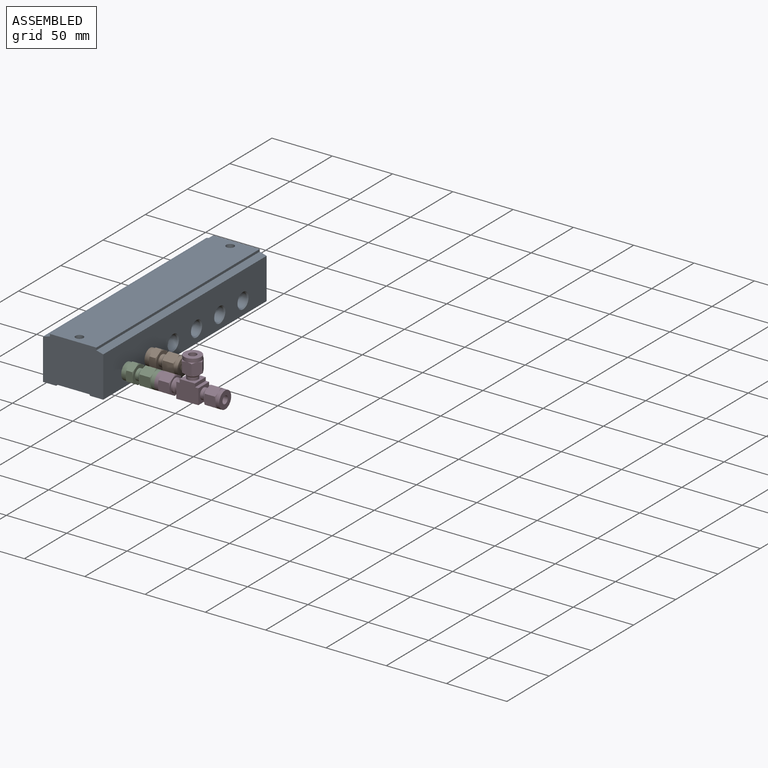
[diagram: assembled view]
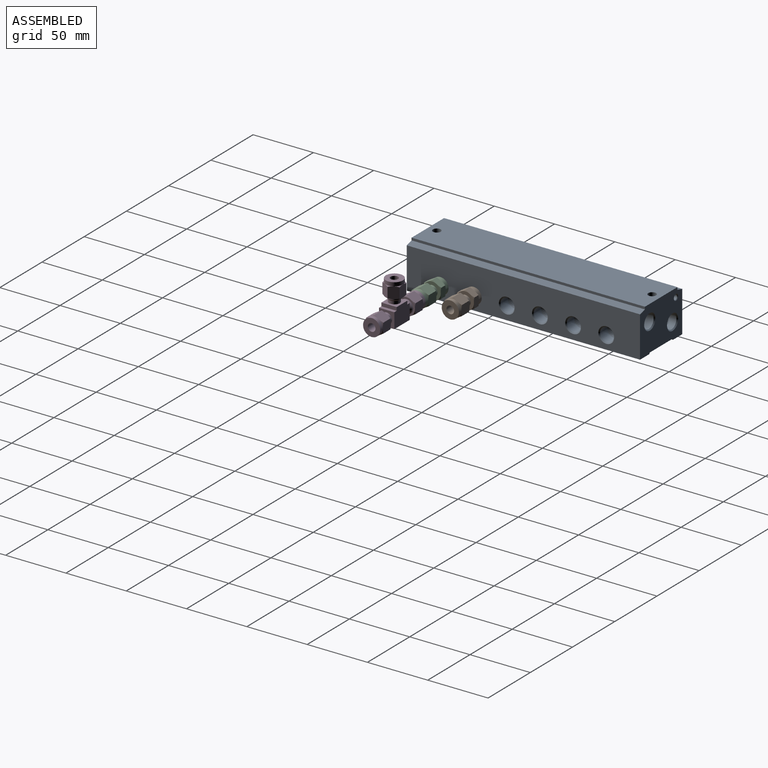
[diagram: assembled view, second angle]
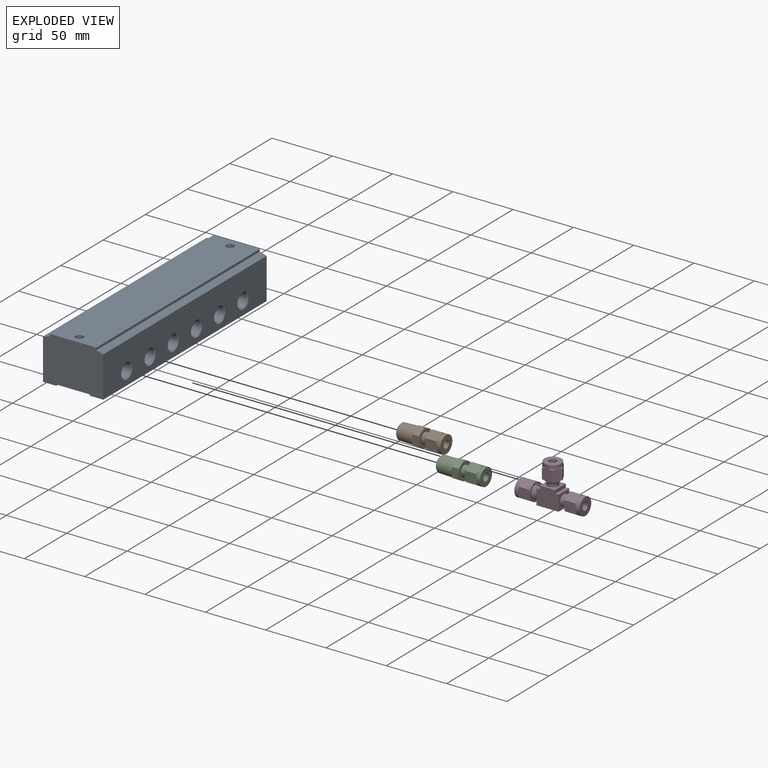
[diagram: exploded view]
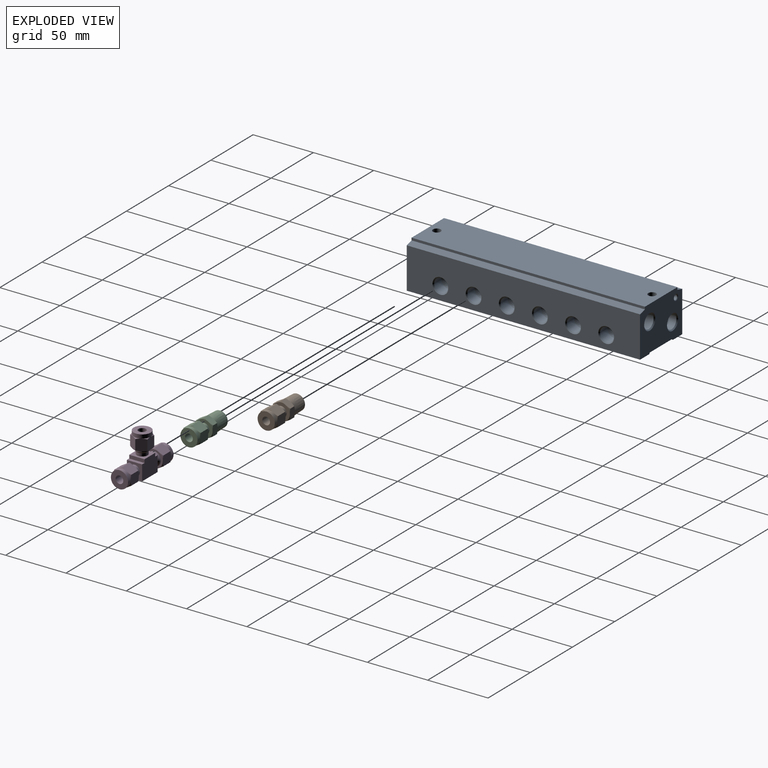
[diagram: exploded view, second angle]
ASSEMBLY  parts=4 mates=3
PART A: 43 faces, bbox 50x37.5x193.5 mm
  f0: plane 193.5x5.75mm, normal (-0.26,0.97,0), area 1151.9mm2, adj f1,f2,f3,f42
  f1: plane 50x37.5mm, normal (0,0,1), area 1815.6mm2, adj f0,f2,f3,f4,f5,f6,f7,f8
  f2: plane 193.5x2mm, normal (-1,0,0), area 387mm2, adj f0,f1,f12,f42
  f3: plane 193.5x33.96mm, normal (-1,0,0), area 6571.1mm2, adj f0,f1,f4,f42
  f4: plane 193.5x10.92mm, normal (0,-1,0), area 2113.5mm2, adj f1,f3,f5,f42
  f5: plane 193.5x1mm, normal (0.87,-0.5,0), area 223.4mm2, adj f1,f4,f6,f42
  f6: plane 193.5x27mm, normal (0,-1,0), area 5158.1mm2, adj f1,f5,f7,f13,f14,f42
  f7: plane 193.5x1mm, normal (-0.87,-0.5,0), area 223.4mm2, adj f1,f6,f8,f42
  f8: plane 193.5x10.92mm, normal (0,-1,0), area 2113.5mm2, adj f1,f7,f9,f42
  f9: plane 193.5x33.96mm, normal (1,0,0), area 5755.4mm2, adj f1,f8,f10,f24,f27,f30,f33,f36
  f10: plane 193.5x5.75mm, normal (0.26,0.97,0), area 1151.9mm2, adj f1,f9,f11,f42
  f11: plane 193.5x2mm, normal (1,0,0), area 387mm2, adj f1,f10,f12,f42
  f12: plane 193.5x38.5mm, normal (0,1,0), area 7383.4mm2, adj f1,f2,f11,f13,f14,f42
  f13: cylinder r=3.25mm len=36.5mm, axis (0,1,0), area 745.3mm2, adj f6,f12
  f14: cylinder r=3.25mm len=36.5mm, axis (0,1,0), area 745.3mm2, adj f6,f12
  f15: cone r=2.07mm half-angle=45deg, axis (0,0,-1), area 8.8mm2, adj f16,f42
  f16: cylinder r=2.07mm len=4.57mm, axis (0,0,1), area 59.3mm2, adj f15,f17
  f17: cone r=866.03mm half-angle=60deg, axis (0,0,-1), area 15.5mm2, adj f16
  f18: cone r=5.72mm half-angle=45deg, axis (0,0,-1), area 46.8mm2, adj f19,f42
  f19: cylinder r=5.72mm len=11.45mm, axis (0,0,1), area 307.2mm2, adj f18,f20
  f20: cone r=866.03mm half-angle=60deg, axis (0,0,-1), area 118.8mm2, adj f19
  f21: cone r=5.72mm half-angle=45deg, axis (0,0,-1), area 46.8mm2, adj f22,f42
  f22: cylinder r=5.72mm len=11.45mm, axis (0,0,1), area 307.2mm2, adj f21,f23
  f23: cone r=866.03mm half-angle=60deg, axis (0,0,-1), area 118.8mm2, adj f22
  f24: cone r=5.72mm half-angle=45deg, axis (1,0,0), area 46.8mm2, adj f9,f25
  f25: cylinder r=5.72mm len=11.45mm, axis (-1,0,0), area 307.2mm2, adj f24,f26
  f26: cone r=866.03mm half-angle=60deg, axis (1,0,0), area 118.8mm2, adj f25
  f27: cone r=5.72mm half-angle=45deg, axis (1,0,0), area 46.8mm2, adj f9,f28
  f28: cylinder r=5.72mm len=11.45mm, axis (-1,0,0), area 307.2mm2, adj f27,f29
  f29: cone r=866.03mm half-angle=60deg, axis (1,0,0), area 118.8mm2, adj f28
  f30: cone r=5.72mm half-angle=45deg, axis (1,0,0), area 46.8mm2, adj f9,f31
  f31: cylinder r=5.72mm len=11.45mm, axis (-1,0,0), area 307.2mm2, adj f30,f32
  f32: cone r=866.03mm half-angle=60deg, axis (1,0,0), area 118.8mm2, adj f31
  f33: cone r=5.72mm half-angle=45deg, axis (1,0,0), area 46.8mm2, adj f9,f34
  f34: cylinder r=5.72mm len=11.45mm, axis (-1,0,0), area 307.2mm2, adj f33,f35
  f35: cone r=866.03mm half-angle=60deg, axis (1,0,0), area 118.8mm2, adj f34
  f36: cone r=5.72mm half-angle=45deg, axis (1,0,0), area 46.8mm2, adj f9,f37
  f37: cylinder r=5.72mm len=11.45mm, axis (-1,0,0), area 307.2mm2, adj f36,f38
  f38: cone r=866.03mm half-angle=60deg, axis (1,0,0), area 118.8mm2, adj f37
  f39: cone r=5.72mm half-angle=45deg, axis (1,0,0), area 46.8mm2, adj f9,f40
  f40: cylinder r=5.72mm len=11.45mm, axis (-1,0,0), area 307.2mm2, adj f39,f41
  f41: cone r=866.03mm half-angle=60deg, axis (1,0,0), area 118.8mm2, adj f40
  f42: plane 50x37.5mm, normal (0,0,-1), area 1524mm2, adj f0,f2,f3,f4,f5,f6,f7,f8
PART B: 51 faces, bbox 37.8x16.5x16.5 mm
  f0: cylinder r=2.41mm len=22.61mm, axis (1,0,0), area 342.7mm2, adj f1,f2
  f1: plane 6.35x6.35mm, normal (1,0,0), area 13.4mm2, adj f0,f3
  f2: plane 10.75x10.75mm, normal (-1,0,0), area 72.5mm2, adj f0,f4
  f3: cylinder r=3.17mm len=15.24mm, axis (-1,0,0), area 304mm2, adj f1,f5
  f4: cone r=6.04mm half-angle=45deg, axis (1,0,0), area 54.8mm2, adj f2,f6
  f5: plane 14.22x14.22mm, normal (1,0,0), area 127.2mm2, adj f3,f7
  f6: cone r=6.55mm half-angle=1.8deg, axis (1,0,0), area 378mm2, adj f4,f8
  f7: cylinder r=7.11mm len=14.22mm, axis (-1,0,0), area 136.2mm2, adj f5,f9,f10,f11,f12,f13,f14
  f8: cylinder r=6.71mm len=13.41mm, axis (1,0,0), area 169.3mm2, adj f6,f15
  f9: cone r=7.66mm half-angle=65deg, axis (-1,0,0), area 3mm2, adj f7,f16,f17
  f10: cone r=7.66mm half-angle=65deg, axis (-1,0,0), area 3mm2, adj f7,f17,f18
  f11: cone r=7.66mm half-angle=65deg, axis (-1,0,0), area 3mm2, adj f7,f18,f19
  f12: cone r=7.66mm half-angle=65deg, axis (-1,0,0), area 3mm2, adj f7,f19,f20
  f13: cone r=7.66mm half-angle=65deg, axis (-1,0,0), area 3mm2, adj f7,f20,f21
  f14: cone r=7.66mm half-angle=65deg, axis (-1,0,0), area 3mm2, adj f7,f16,f21
  f15: plane 14.29x14.29mm, normal (-1,0,0), area 19.1mm2, adj f8,f22,f23,f24,f25,f26,f27
  f16: plane 9.65x8.21mm, normal (0,-1,0), area 76.4mm2, adj f9,f14,f17,f21,f28,f29
  f17: plane 9.65x7.11mm, normal (0,-0.5,-0.87), area 76.4mm2, adj f9,f10,f16,f18,f29,f30
  f18: plane 9.65x7.11mm, normal (0,0.5,-0.87), area 76.4mm2, adj f10,f11,f17,f19,f30,f31
  f19: plane 9.65x8.21mm, normal (0,1,0), area 76.4mm2, adj f11,f12,f18,f20,f31,f32
  f20: plane 9.65x7.11mm, normal (0,0.5,0.87), area 76.4mm2, adj f12,f13,f19,f21,f32,f33
  f21: plane 9.65x7.11mm, normal (0,-0.5,0.87), area 76.4mm2, adj f13,f14,f16,f20,f28,f33
  f22: cone r=7.7mm half-angle=65deg, axis (1,0,0), area 3mm2, adj f15,f34,f35
  f23: cone r=7.7mm half-angle=65deg, axis (1,0,0), area 3mm2, adj f15,f35,f36
  f24: cone r=7.7mm half-angle=65deg, axis (1,0,0), area 3mm2, adj f15,f36,f37
  f25: cone r=7.7mm half-angle=65deg, axis (1,0,0), area 3mm2, adj f15,f37,f39
  f26: cone r=7.7mm half-angle=65deg, axis (1,0,0), area 3mm2, adj f15,f34,f38
  f27: cone r=7.7mm half-angle=65deg, axis (1,0,0), area 3mm2, adj f15,f38,f39
  f28: cone r=7.66mm half-angle=65deg, axis (1,0,0), area 3mm2, adj f16,f21,f40
  f29: cone r=7.66mm half-angle=65deg, axis (1,0,0), area 3mm2, adj f16,f17,f40
  f30: cone r=7.66mm half-angle=65deg, axis (1,0,0), area 3mm2, adj f17,f18,f40
  f31: cone r=7.66mm half-angle=65deg, axis (1,0,0), area 3mm2, adj f18,f19,f40
  f32: cone r=7.66mm half-angle=65deg, axis (1,0,0), area 3mm2, adj f19,f20,f40
  f33: cone r=7.66mm half-angle=65deg, axis (1,0,0), area 3mm2, adj f20,f21,f40
  f34: plane 7.14x5.84mm, normal (0,-0.5,0.87), area 45.3mm2, adj f22,f26,f35,f38,f42,f43
  f35: plane 7.14x5.84mm, normal (0,0.5,0.87), area 45.3mm2, adj f22,f23,f34,f36,f43,f44
  f36: plane 8.25x5.84mm, normal (0,1,0), area 45.3mm2, adj f23,f24,f35,f37,f44,f45
  f37: plane 7.14x5.84mm, normal (0,0.5,-0.87), area 45.3mm2, adj f24,f25,f36,f39,f45,f46
  f38: plane 8.25x5.84mm, normal (0,-1,0), area 45.3mm2, adj f26,f27,f34,f39,f42,f47
  f39: plane 7.14x5.84mm, normal (0,-0.5,-0.87), area 45.3mm2, adj f25,f27,f37,f38,f46,f47
  f40: plane 14.22x14.22mm, normal (-1,0,0), area 61.9mm2, adj f28,f29,f30,f31,f32,f33,f41
  f41: cylinder r=5.56mm len=11.11mm, axis (-1,0,0), area 51mm2, adj f40,f48
  f42: cone r=7.7mm half-angle=65deg, axis (-1,0,0), area 3mm2, adj f34,f38,f49
  f43: cone r=7.7mm half-angle=65deg, axis (-1,0,0), area 3mm2, adj f34,f35,f49
  f44: cone r=7.7mm half-angle=65deg, axis (-1,0,0), area 3mm2, adj f35,f36,f49
  f45: cone r=7.7mm half-angle=65deg, axis (-1,0,0), area 3mm2, adj f36,f37,f49
  f46: cone r=7.7mm half-angle=65deg, axis (-1,0,0), area 3mm2, adj f37,f39,f49
  f47: cone r=7.7mm half-angle=65deg, axis (-1,0,0), area 3mm2, adj f38,f39,f49
  f48: cone r=5.02mm half-angle=45deg, axis (1,0,0), area 48.1mm2, adj f41,f50
  f49: plane 14.29x14.29mm, normal (1,0,0), area 97.4mm2, adj f42,f43,f44,f45,f46,f47,f50
  f50: cylinder r=4.48mm len=8.95mm, axis (-1,0,0), area 71.4mm2, adj f48,f49
PART C: same geometry as B
PART D: 90 faces, bbox 53.8x16.4x35.1 mm
  f0: cylinder r=3.17mm len=15.24mm, axis (-1,0,0), area 304mm2, adj f2,f4
  f1: cylinder r=3.17mm len=15.24mm, axis (1,0,0), area 304mm2, adj f3,f5
  f2: plane 6.35x6.35mm, normal (1,0,0), area 13.4mm2, adj f0,f6
  f3: plane 6.35x6.35mm, normal (-1,0,0), area 13.4mm2, adj f1,f6
  f4: plane 14.22x14.22mm, normal (1,0,0), area 127.2mm2, adj f0,f7
  f5: plane 14.22x14.22mm, normal (-1,0,0), area 127.2mm2, adj f1,f8
  f6: cylinder r=2.41mm len=23.37mm, axis (1,0,0), area 331mm2, adj f2,f3,f9
  f7: cylinder r=7.11mm len=14.22mm, axis (-1,0,0), area 136.2mm2, adj f4,f10,f11,f12,f13,f14,f15
  f8: cylinder r=7.11mm len=14.22mm, axis (1,0,0), area 136.2mm2, adj f5,f16,f17,f18,f19,f20,f21
  f9: cylinder r=2.41mm len=11.68mm, axis (0,0,-1), area 153.9mm2, adj f6,f22
  f10: cone r=7.66mm half-angle=60deg, axis (-1,0,0), area 3.1mm2, adj f7,f23,f24
  f11: cone r=7.66mm half-angle=60deg, axis (-1,0,0), area 3.1mm2, adj f7,f24,f25
  f12: cone r=7.66mm half-angle=60deg, axis (-1,0,0), area 3.1mm2, adj f7,f25,f26
  f13: cone r=7.66mm half-angle=60deg, axis (-1,0,0), area 3.1mm2, adj f7,f26,f27
  f14: cone r=7.66mm half-angle=60deg, axis (-1,0,0), area 3.1mm2, adj f7,f27,f28
  f15: cone r=7.66mm half-angle=60deg, axis (-1,0,0), area 3.1mm2, adj f7,f23,f28
  f16: cone r=7.66mm half-angle=60deg, axis (1,0,0), area 3.1mm2, adj f8,f29,f30
  f17: cone r=7.66mm half-angle=60deg, axis (1,0,0), area 3.1mm2, adj f8,f30,f31
  f18: cone r=7.66mm half-angle=60deg, axis (1,0,0), area 3.1mm2, adj f8,f31,f32
  f19: cone r=7.66mm half-angle=60deg, axis (1,0,0), area 3.1mm2, adj f8,f32,f33
  f20: cone r=7.66mm half-angle=60deg, axis (1,0,0), area 3.1mm2, adj f8,f33,f34
  f21: cone r=7.66mm half-angle=60deg, axis (1,0,0), area 3.1mm2, adj f8,f29,f34
  f22: plane 6.35x6.35mm, normal (0,0,-1), area 13.4mm2, adj f9,f35
  f23: plane 9.65x8.21mm, normal (0,1,0), area 75.7mm2, adj f10,f15,f24,f28,f36,f37
  f24: plane 9.65x7.11mm, normal (0,0.5,0.87), area 75.7mm2, adj f10,f11,f23,f25,f37,f38
  f25: plane 9.65x7.11mm, normal (0,-0.5,0.87), area 75.7mm2, adj f11,f12,f24,f26,f38,f39
  f26: plane 9.65x8.21mm, normal (0,-1,0), area 75.7mm2, adj f12,f13,f25,f27,f39,f40
  f27: plane 9.65x7.11mm, normal (0,-0.5,-0.87), area 75.7mm2, adj f13,f14,f26,f28,f40,f41
  f28: plane 9.65x7.11mm, normal (0,0.5,-0.87), area 75.7mm2, adj f14,f15,f23,f27,f36,f41
  f29: plane 9.65x8.21mm, normal (0,1,0), area 75.7mm2, adj f16,f21,f30,f34,f42,f43
  f30: plane 9.65x7.11mm, normal (0,0.5,-0.87), area 75.7mm2, adj f16,f17,f29,f31,f43,f44
  f31: plane 9.65x7.11mm, normal (0,-0.5,-0.87), area 75.7mm2, adj f17,f18,f30,f32,f44,f45
  f32: plane 9.65x8.21mm, normal (0,-1,0), area 75.7mm2, adj f18,f19,f31,f33,f45,f46
  f33: plane 9.65x7.11mm, normal (0,-0.5,0.87), area 75.7mm2, adj f19,f20,f32,f34,f46,f47
  f34: plane 9.65x7.11mm, normal (0,0.5,0.87), area 75.7mm2, adj f20,f21,f29,f33,f42,f47
  f35: cylinder r=3.17mm len=15.24mm, axis (0,0,1), area 304mm2, adj f22,f48
  f36: cone r=7.66mm half-angle=60deg, axis (1,0,0), area 3.1mm2, adj f23,f28,f49
  f37: cone r=7.66mm half-angle=60deg, axis (1,0,0), area 3.1mm2, adj f23,f24,f49
  f38: cone r=7.66mm half-angle=60deg, axis (1,0,0), area 3.1mm2, adj f24,f25,f49
  f39: cone r=7.66mm half-angle=60deg, axis (1,0,0), area 3.1mm2, adj f25,f26,f49
  f40: cone r=7.66mm half-angle=60deg, axis (1,0,0), area 3.1mm2, adj f26,f27,f49
  f41: cone r=7.66mm half-angle=60deg, axis (1,0,0), area 3.1mm2, adj f27,f28,f49
  f42: cone r=7.66mm half-angle=60deg, axis (-1,0,0), area 3.1mm2, adj f29,f34,f50
  f43: cone r=7.66mm half-angle=60deg, axis (-1,0,0), area 3.1mm2, adj f29,f30,f50
  f44: cone r=7.66mm half-angle=60deg, axis (-1,0,0), area 3.1mm2, adj f30,f31,f50
  f45: cone r=7.66mm half-angle=60deg, axis (-1,0,0), area 3.1mm2, adj f31,f32,f50
  f46: cone r=7.66mm half-angle=60deg, axis (-1,0,0), area 3.1mm2, adj f32,f33,f50
  f47: cone r=7.66mm half-angle=60deg, axis (-1,0,0), area 3.1mm2, adj f33,f34,f50
  f48: plane 14.22x14.22mm, normal (0,0,-1), area 127.2mm2, adj f35,f51
  f49: plane 14.22x14.22mm, normal (-1,0,0), area 61.9mm2, adj f36,f37,f38,f39,f40,f41,f52
  f50: plane 14.22x14.22mm, normal (1,0,0), area 61.9mm2, adj f42,f43,f44,f45,f46,f47,f53
  f51: cylinder r=7.11mm len=14.22mm, axis (0,0,1), area 136.2mm2, adj f48,f54,f55,f56,f57,f58,f59
  f52: cylinder r=5.56mm len=11.11mm, axis (-1,0,0), area 51mm2, adj f49,f60
  f53: cylinder r=5.56mm len=11.11mm, axis (1,0,0), area 51mm2, adj f50,f61
  f54: cone r=7.66mm half-angle=60deg, axis (0,0,1), area 3.1mm2, adj f51,f62,f63
  f55: cone r=7.66mm half-angle=60deg, axis (0,0,1), area 3.1mm2, adj f51,f63,f64
  f56: cone r=7.66mm half-angle=60deg, axis (0,0,1), area 3.1mm2, adj f51,f64,f65
  f57: cone r=7.66mm half-angle=60deg, axis (0,0,1), area 3.1mm2, adj f51,f65,f66
  f58: cone r=7.66mm half-angle=60deg, axis (0,0,1), area 3.1mm2, adj f51,f66,f67
  f59: cone r=7.66mm half-angle=60deg, axis (0,0,1), area 3.1mm2, adj f51,f62,f67
  f60: cone r=5.02mm half-angle=45deg, axis (1,0,0), area 48.1mm2, adj f52,f68
  f61: cone r=5.02mm half-angle=45deg, axis (-1,0,0), area 48.1mm2, adj f53,f69
  f62: plane 9.65x8.21mm, normal (0,1,0), area 75.7mm2, adj f54,f59,f63,f67,f70,f71
  f63: plane 9.65x7.11mm, normal (0.87,0.5,0), area 75.7mm2, adj f54,f55,f62,f64,f71,f72
  f64: plane 9.65x7.11mm, normal (0.87,-0.5,0), area 75.7mm2, adj f55,f56,f63,f65,f72,f73
  f65: plane 9.65x8.21mm, normal (0,-1,0), area 75.7mm2, adj f56,f57,f64,f66,f73,f74
  f66: plane 9.65x7.11mm, normal (-0.87,-0.5,0), area 75.7mm2, adj f57,f58,f65,f67,f74,f75
  f67: plane 9.65x7.11mm, normal (-0.87,0.5,0), area 75.7mm2, adj f58,f59,f62,f66,f70,f75
  f68: cylinder r=4.48mm len=8.95mm, axis (-1,0,0), area 71.4mm2, adj f60,f77
  f69: cylinder r=4.48mm len=8.95mm, axis (1,0,0), area 71.4mm2, adj f61,f79
  f70: cone r=7.66mm half-angle=60deg, axis (0,0,-1), area 3.1mm2, adj f62,f67,f81
  f71: cone r=7.66mm half-angle=60deg, axis (0,0,-1), area 3.1mm2, adj f62,f63,f81
  f72: cone r=7.66mm half-angle=60deg, axis (0,0,-1), area 3.1mm2, adj f63,f64,f81
  f73: cone r=7.66mm half-angle=60deg, axis (0,0,-1), area 3.1mm2, adj f64,f65,f81
  f74: cone r=7.66mm half-angle=60deg, axis (0,0,-1), area 3.1mm2, adj f65,f66,f81
  f75: cone r=7.66mm half-angle=60deg, axis (0,0,-1), area 3.1mm2, adj f66,f67,f81
  f76: plane 12.7x2.79mm, normal (0,0,-1), area 35.5mm2, adj f77,f84,f85,f86
  f77: plane 12.7x12.7mm, normal (1,0,0), area 98.3mm2, adj f68,f76,f78,f84,f86
  f78: plane 18.29x12.7mm, normal (0,0,1), area 232.3mm2, adj f77,f79,f84,f86
  f79: plane 12.7x12.7mm, normal (-1,0,0), area 98.3mm2, adj f69,f78,f80,f84,f86
  f80: plane 12.7x2.79mm, normal (0,0,-1), area 35.5mm2, adj f79,f83,f84,f86
  f81: plane 14.22x14.22mm, normal (0,0,1), area 61.9mm2, adj f70,f71,f72,f73,f74,f75,f82
  f82: cylinder r=5.56mm len=11.11mm, axis (0,0,1), area 51mm2, adj f81,f87
  f83: plane 12.7x2.79mm, normal (-1,0,0), area 35.5mm2, adj f80,f84,f86,f88
  f84: plane 18.29x15.49mm, normal (0,-1,0), area 267.7mm2, adj f76,f77,f78,f79,f80,f83,f85,f88
  f85: plane 12.7x2.79mm, normal (1,0,0), area 35.5mm2, adj f76,f84,f86,f88
  f86: plane 18.29x15.49mm, normal (0,1,0), area 267.7mm2, adj f76,f77,f78,f79,f80,f83,f85,f88
  f87: cone r=5.02mm half-angle=45deg, axis (0,0,-1), area 48.1mm2, adj f82,f89
  f88: plane 12.7x12.7mm, normal (0,0,-1), area 98.3mm2, adj f83,f84,f85,f86,f89
  f89: cylinder r=4.48mm len=8.95mm, axis (0,0,1), area 71.4mm2, adj f87,f88
PLACE A rot(axis=(1,0,0),90deg) t=(1.71,177.16,-81.51)mm
PLACE B t=(-8.49,39.16,-70.51)mm
PLACE C t=(-8.49,11.66,-70.51)mm
PLACE D rot(axis=(-1,0,0),180deg) t=(29.35,11.66,-70.51)mm
MATE revolute C.f0 <-> D.f10  axis (1,0,0) through (29.35,11.66,-70.51)mm
MATE revolute B.f9 <-> A.f27  axis (1,0,0) through (1.71,39.16,-70.51)mm
MATE revolute C.f9 <-> A.f24  axis (1,0,0) through (1.71,11.66,-70.51)mm
